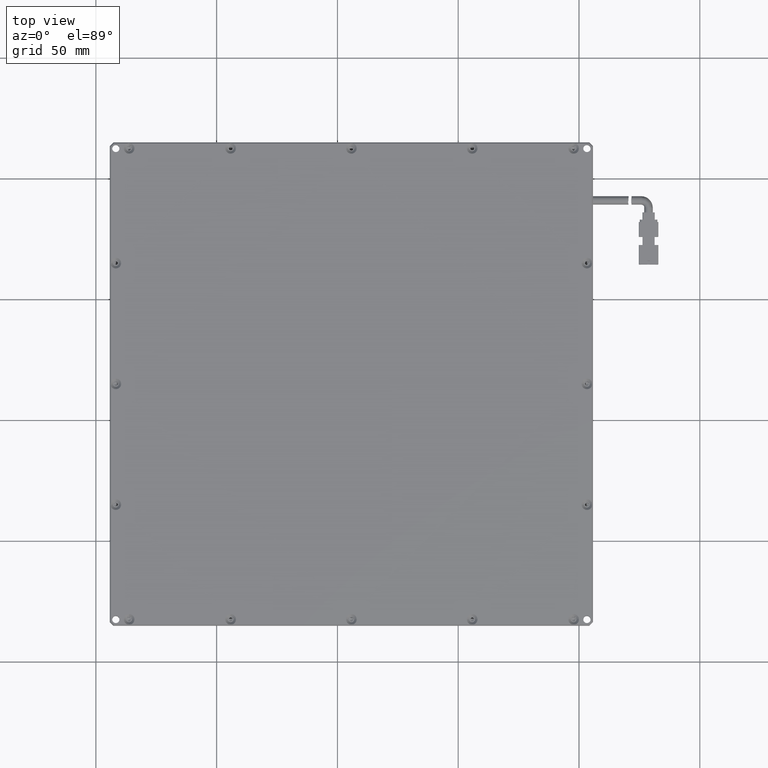
[diagram: clean part render]
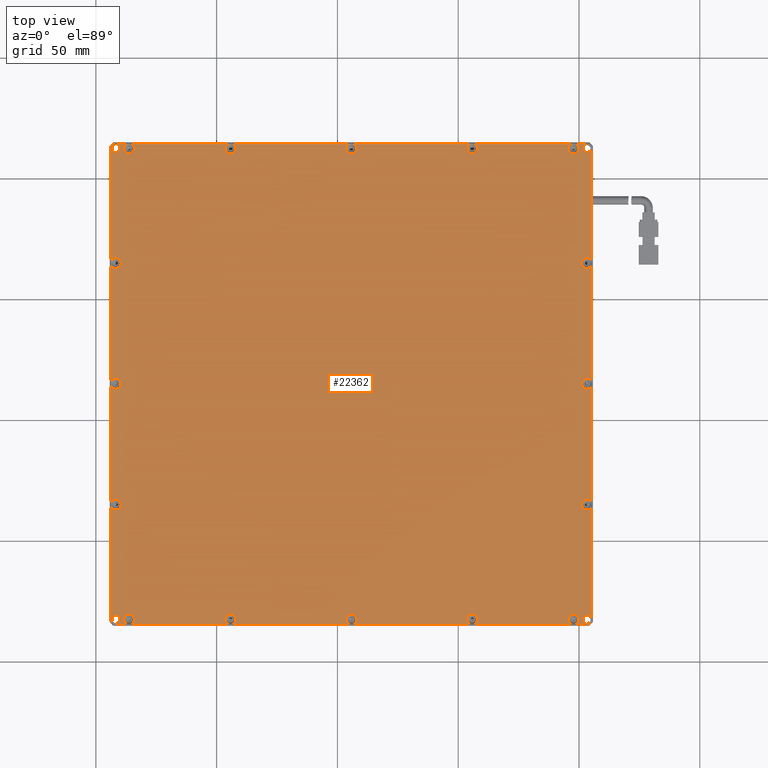
[diagram: same view with one face highlighted and labeled with its STEP entity id]
A machine part, top view. The second image highlights one B-rep face of the part: STEP entity #22362.
In plain terms, the highlighted planar face has unit normal (0, 0, -1).
Its self-contained STEP definition (entity closure, byte-faithful):
#9 = LINE ( 'NONE', #17418, #5781 ) ;
#215 = CARTESIAN_POINT ( 'NONE',  ( -143.7189553990610600, 114.9508215962441300, 5.999999999999998200 ) ) ;
#346 = CIRCLE ( 'NONE', #2779, 2.199999999982077600 ) ;
#432 = DIRECTION ( 'NONE',  ( 1.000000000000000000, -0.0000000000000000000, 0.0000000000000000000 ) ) ;
#549 = DIRECTION ( 'NONE',  ( 1.000000000000000000, 0.0000000000000000000, 0.0000000000000000000 ) ) ;
#575 = ORIENTED_EDGE ( 'NONE', *, *, #21312, .F. ) ;
#603 = DIRECTION ( 'NONE',  ( 1.000000000000000000, -6.308085367148496200E-015, 0.0000000000000000000 ) ) ;
#683 = VECTOR ( 'NONE', #26050, 1000.000000000000000 ) ;
#736 = CIRCLE ( 'NONE', #11920, 2.199999999970697400 ) ;
#926 = CARTESIAN_POINT ( 'NONE',  ( 5.781044600938978200, 112.4508215962441300, 5.999999999964528800 ) ) ;
#1014 = CIRCLE ( 'NONE', #4837, 2.199999999982077600 ) ;
#1059 = CIRCLE ( 'NONE', #4565, 2.199999999966617500 ) ;
#1131 = EDGE_LOOP ( 'NONE', ( #11905, #6549 ) ) ;
#1141 = CARTESIAN_POINT ( 'NONE',  ( 47.78104460093896200, 112.4508215962441300, 5.999999999964528800 ) ) ;
#1149 = AXIS2_PLACEMENT_3D ( 'NONE', #30091, #15254, #549 ) ;
#1161 = VERTEX_POINT ( 'NONE', #7705 ) ;
#1170 = CARTESIAN_POINT ( 'NONE',  ( 53.28104460093896200, 64.95082159624411100, 5.999999999964528800 ) ) ;
#1216 = AXIS2_PLACEMENT_3D ( 'NONE', #3272, #20419, #5711 ) ;
#1233 = VERTEX_POINT ( 'NONE', #25241 ) ;
#1296 = CARTESIAN_POINT ( 'NONE',  ( -143.7189553990219500, -35.96569354284905300, 6.000000000039106500 ) ) ;
#1353 = VERTEX_POINT ( 'NONE', #11029 ) ;
#1367 = CIRCLE ( 'NONE', #1216, 1.649999999999984800 ) ;
#1398 = CARTESIAN_POINT ( 'NONE',  ( -141.7189553990610300, 112.4508215962441300, 6.000000000000000000 ) ) ;
#1428 = CARTESIAN_POINT ( 'NONE',  ( -45.13547053803061700, -84.54917840375590300, 6.000000000039107400 ) ) ;
#1444 = VECTOR ( 'NONE', #27072, 1000.000000000000000 ) ;
#1498 = VERTEX_POINT ( 'NONE', #11196 ) ;
#1517 = CARTESIAN_POINT ( 'NONE',  ( -141.7189553990610300, 64.95082159624411100, 6.000000000078215700 ) ) ;
#1543 = CARTESIAN_POINT ( 'NONE',  ( 47.78104460093896200, -82.54917840375587400, 5.999999999964528800 ) ) ;
#1584 = FACE_OUTER_BOUND ( 'NONE', #27089, .T. ) ;
#1631 = DIRECTION ( 'NONE',  ( 0.0000000000000000000, -1.000000000000000000, 0.0000000000000000000 ) ) ;
#1633 = DIRECTION ( 'NONE',  ( -0.0000000000000000000, 0.0000000000000000000, -1.000000000000000000 ) ) ;
#1692 = CARTESIAN_POINT ( 'NONE',  ( -46.41895539904311400, -82.54917840375587400, 6.000000000078215700 ) ) ;
#1722 = ORIENTED_EDGE ( 'NONE', *, *, #9788, .F. ) ;
#1921 = CARTESIAN_POINT ( 'NONE',  ( -95.13547053801694600, -84.54917840375590300, 6.000000000010684800 ) ) ;
#2008 = DIRECTION ( 'NONE',  ( 0.0000000000000000000, -1.000000000000000000, 0.0000000000000000000 ) ) ;
#2048 = CIRCLE ( 'NONE', #11554, 2.199999999950241800 ) ;
#2172 = DIRECTION ( 'NONE',  ( -0.0000000000000000000, 0.0000000000000000000, -1.000000000000000000 ) ) ;
#2289 = CARTESIAN_POINT ( 'NONE',  ( -141.7189553990610300, 112.4508215962441300, 6.000000000000000000 ) ) ;
#2305 = EDGE_CURVE ( 'NONE', #27776, #6881, #16948, .T. ) ;
#2345 = ORIENTED_EDGE ( 'NONE', *, *, #5257, .F. ) ;
#2405 = CIRCLE ( 'NONE', #6444, 2.199999999993429400 ) ;
#2452 = CARTESIAN_POINT ( 'NONE',  ( -44.21895539906103800, -82.54917840375587400, 6.000000000078215700 ) ) ;
#2475 = AXIS2_PLACEMENT_3D ( 'NONE', #1543, #18724, #4047 ) ;
#2579 = EDGE_CURVE ( 'NONE', #4426, #17363, #31985, .T. ) ;
#2663 = EDGE_CURVE ( 'NONE', #6644, #12762, #346, .T. ) ;
#2714 = DIRECTION ( 'NONE',  ( 0.0000000000000000000, 1.000000000000000000, 0.0000000000000000000 ) ) ;
#2779 = AXIS2_PLACEMENT_3D ( 'NONE', #9190, #26431, #11627 ) ;
#2796 = VECTOR ( 'NONE', #20002, 1000.000000000000000 ) ;
#2887 = CIRCLE ( 'NONE', #19768, 2.199999999982077600 ) ;
#2937 = CARTESIAN_POINT ( 'NONE',  ( 47.78104460093896200, -82.54917840375587400, 5.999999999964528800 ) ) ;
#2944 = EDGE_CURVE ( 'NONE', #6192, #24902, #9785, .T. ) ;
#2967 = CARTESIAN_POINT ( 'NONE',  ( 47.78104460093896200, 112.4508215962441300, 5.999999999964528800 ) ) ;
#2968 = CARTESIAN_POINT ( 'NONE',  ( 48.69755973989006700, 114.4508215962441500, 5.999999999982263100 ) ) ;
#3008 = AXIS2_PLACEMENT_3D ( 'NONE', #2967, #20139, #5404 ) ;
#3043 = ORIENTED_EDGE ( 'NONE', *, *, #8517, .T. ) ;
#3097 = ORIENTED_EDGE ( 'NONE', *, *, #14059, .F. ) ;
#3103 = CIRCLE ( 'NONE', #3933, 2.199999999950241800 ) ;
#3107 = DIRECTION ( 'NONE',  ( 0.0000000000000000000, 0.0000000000000000000, 1.000000000000000000 ) ) ;
#3110 = VERTEX_POINT ( 'NONE', #23578 ) ;
#3123 = VERTEX_POINT ( 'NONE', #26405 ) ;
#3161 = CARTESIAN_POINT ( 'NONE',  ( 55.28104460093899800, 114.9508215962441300, 5.999999999999998200 ) ) ;
#3205 = LINE ( 'NONE', #12243, #28696 ) ;
#3272 = CARTESIAN_POINT ( 'NONE',  ( 53.28104460093896200, 112.4508215962441300, 6.000000000000000000 ) ) ;
#3334 = CARTESIAN_POINT ( 'NONE',  ( 47.78104460093896200, 112.4508215962441300, 5.999999999964528800 ) ) ;
#3415 = CARTESIAN_POINT ( 'NONE',  ( -140.0689553990610500, -82.54917840375587400, 6.000000000000000000 ) ) ;
#3416 = EDGE_CURVE ( 'NONE', #22461, #3690, #20862, .T. ) ;
#3417 = DIRECTION ( 'NONE',  ( 1.000000000000000000, 0.0000000000000000000, 0.0000000000000000000 ) ) ;
#3421 = CARTESIAN_POINT ( 'NONE',  ( 5.781044600938978200, -82.54917840375587400, 5.999999999964528800 ) ) ;
#3441 = CIRCLE ( 'NONE', #11227, 2.199999999982077600 ) ;
#3486 = DIRECTION ( 'NONE',  ( -1.000000000000000000, 0.0000000000000000000, -0.0000000000000000000 ) ) ;
#3516 = AXIS2_PLACEMENT_3D ( 'NONE', #31504, #16727, #2008 ) ;
#3573 = ORIENTED_EDGE ( 'NONE', *, *, #8028, .F. ) ;
#3589 = CARTESIAN_POINT ( 'NONE',  ( 3.581044600945548800, 112.4508215962441300, 5.999999999964528800 ) ) ;
#3594 = CARTESIAN_POINT ( 'NONE',  ( -141.7189553990610300, 17.15082159625804100, 6.000000000021372200 ) ) ;
#3620 = DIRECTION ( 'NONE',  ( 0.0000000000000000000, 4.928191693121445900E-017, 1.000000000000000000 ) ) ;
#3671 = DIRECTION ( 'NONE',  ( 1.000000000000000000, 0.0000000000000000000, 0.0000000000000000000 ) ) ;
#3690 = VERTEX_POINT ( 'NONE', #12838 ) ;
#3693 = DIRECTION ( 'NONE',  ( -0.0000000000000000000, -1.000000000000000000, -0.0000000000000000000 ) ) ;
#3694 = CARTESIAN_POINT ( 'NONE',  ( 55.28104460093899800, 114.9508215962441300, 5.999999999999998200 ) ) ;
#3701 = DIRECTION ( 'NONE',  ( 1.000000000000000000, 0.0000000000000000000, 0.0000000000000000000 ) ) ;
#3836 = CARTESIAN_POINT ( 'NONE',  ( -143.7189553990591300, 14.03430645723639700, 6.000000000012623700 ) ) ;
#3843 = CARTESIAN_POINT ( 'NONE',  ( -136.2189553990610300, -80.34917840375834400, 6.000000000021372200 ) ) ;
#3899 = DIRECTION ( 'NONE',  ( 1.000000000000000000, 0.0000000000000000000, 0.0000000000000000000 ) ) ;
#3918 = VERTEX_POINT ( 'NONE', #4664 ) ;
#3933 = AXIS2_PLACEMENT_3D ( 'NONE', #1170, #18356, #3701 ) ;
#3970 = DIRECTION ( 'NONE',  ( 0.0000000000000000000, 0.0000000000000000000, -1.000000000000000000 ) ) ;
#4006 = EDGE_CURVE ( 'NONE', #3123, #14960, #9, .T. ) ;
#4007 = EDGE_CURVE ( 'NONE', #26918, #4374, #18864, .T. ) ;
#4016 = ORIENTED_EDGE ( 'NONE', *, *, #16414, .T. ) ;
#4025 = DIRECTION ( 'NONE',  ( 1.000000000000000000, 0.0000000000000000000, 0.0000000000000000000 ) ) ;
#4047 = DIRECTION ( 'NONE',  ( 1.000000000000000000, 0.0000000000000000000, 0.0000000000000000000 ) ) ;
#4050 = CIRCLE ( 'NONE', #13877, 2.199999999966617500 ) ;
#4070 = EDGE_CURVE ( 'NONE', #13964, #3918, #11540, .T. ) ;
#4110 = ORIENTED_EDGE ( 'NONE', *, *, #23192, .F. ) ;
#4114 = DIRECTION ( 'NONE',  ( -0.0000000000000000000, -4.928191693181569400E-017, -1.000000000000000000 ) ) ;
#4175 = ORIENTED_EDGE ( 'NONE', *, *, #6345, .F. ) ;
#4244 = AXIS2_PLACEMENT_3D ( 'NONE', #20089, #5346, #22605 ) ;
#4277 = ORIENTED_EDGE ( 'NONE', *, *, #7609, .T. ) ;
#4374 = VERTEX_POINT ( 'NONE', #17175 ) ;
#4426 = VERTEX_POINT ( 'NONE', #20285 ) ;
#4466 = CARTESIAN_POINT ( 'NONE',  ( 53.28104460093896200, -35.04917840375588900, 5.999999999964528800 ) ) ;
#4524 = ORIENTED_EDGE ( 'NONE', *, *, #10948, .T. ) ;
#4554 = CIRCLE ( 'NONE', #23921, 2.199999999966617500 ) ;
#4565 = AXIS2_PLACEMENT_3D ( 'NONE', #1141, #18325, #3671 ) ;
#4575 = EDGE_CURVE ( 'NONE', #15608, #29988, #7992, .T. ) ;
#4582 = EDGE_CURVE ( 'NONE', #23902, #29952, #14534, .T. ) ;
#4664 = CARTESIAN_POINT ( 'NONE',  ( 46.86452946198793500, 114.4508215962441500, 5.999999999982263100 ) ) ;
#4756 = DIRECTION ( 'NONE',  ( 1.000000000000000000, 0.0000000000000000000, 0.0000000000000000000 ) ) ;
#4762 = AXIS2_PLACEMENT_3D ( 'NONE', #28230, #13400, #30688 ) ;
#4837 = AXIS2_PLACEMENT_3D ( 'NONE', #8632, #25862, #11086 ) ;
#4877 = DIRECTION ( 'NONE',  ( 1.000000000000000000, 0.0000000000000000000, 0.0000000000000000000 ) ) ;
#4930 = EDGE_CURVE ( 'NONE', #9686, #9213, #12200, .T. ) ;
#4967 = CARTESIAN_POINT ( 'NONE',  ( 3.581044600945548800, -82.54917840375587400, 5.999999999964528800 ) ) ;
#5038 = EDGE_CURVE ( 'NONE', #12762, #8714, #5164, .T. ) ;
#5073 = VECTOR ( 'NONE', #30533, 1000.000000000000000 ) ;
#5103 = ORIENTED_EDGE ( 'NONE', *, *, #4930, .F. ) ;
#5164 = CIRCLE ( 'NONE', #8565, 2.199999999982077600 ) ;
#5185 = CARTESIAN_POINT ( 'NONE',  ( -94.21895539906103100, 112.4508215962441300, 6.000000000021372200 ) ) ;
#5233 = CARTESIAN_POINT ( 'NONE',  ( -141.7189553990610300, 14.95082159624412700, 6.000000000021372200 ) ) ;
#5257 = EDGE_CURVE ( 'NONE', #6881, #23902, #14738, .T. ) ;
#5264 = DIRECTION ( 'NONE',  ( 0.0000000000000000000, 0.0000000000000000000, -1.000000000000000000 ) ) ;
#5307 = LINE ( 'NONE', #10950, #24937 ) ;
#5346 = DIRECTION ( 'NONE',  ( 0.0000000000000000000, -0.0000000000000000000, 1.000000000000000000 ) ) ;
#5361 = DIRECTION ( 'NONE',  ( 1.000000000000000000, 0.0000000000000000000, 0.0000000000000000000 ) ) ;
#5369 = CARTESIAN_POINT ( 'NONE',  ( -144.2189553990610300, 114.4508215962441500, 5.999999999999998200 ) ) ;
#5404 = DIRECTION ( 'NONE',  ( 1.000000000000000000, 0.0000000000000000000, 0.0000000000000000000 ) ) ;
#5448 = VERTEX_POINT ( 'NONE', #10666 ) ;
#5490 = CARTESIAN_POINT ( 'NONE',  ( 53.28104460093896200, 14.95082159624412700, 5.999999999964528800 ) ) ;
#5645 = VERTEX_POINT ( 'NONE', #22317 ) ;
#5657 = VECTOR ( 'NONE', #28575, 1000.000000000000000 ) ;
#5711 = DIRECTION ( 'NONE',  ( 1.000000000000000000, 0.0000000000000000000, 0.0000000000000000000 ) ) ;
#5770 = DIRECTION ( 'NONE',  ( 1.000000000000000000, 0.0000000000000000000, 0.0000000000000000000 ) ) ;
#5781 = VECTOR ( 'NONE', #27359, 1000.000000000000000 ) ;
#5804 = CIRCLE ( 'NONE', #24880, 2.199999999966617500 ) ;
#5868 = DIRECTION ( 'NONE',  ( 1.000000000000000000, 0.0000000000000000000, 0.0000000000000000000 ) ) ;
#5927 = CARTESIAN_POINT ( 'NONE',  ( -42.01895539907896200, -82.54917840375587400, 6.000000000078215700 ) ) ;
#5955 = CARTESIAN_POINT ( 'NONE',  ( -135.3024402600728700, -84.54917840375590300, 6.000000000010685700 ) ) ;
#6105 = VECTOR ( 'NONE', #29863, 1000.000000000000000 ) ;
#6134 = LINE ( 'NONE', #13313, #24959 ) ;
#6142 = ORIENTED_EDGE ( 'NONE', *, *, #28583, .T. ) ;
#6152 = CARTESIAN_POINT ( 'NONE',  ( 55.28104460093899800, 113.2437148150575300, 5.999999999999998200 ) ) ;
#6192 = VERTEX_POINT ( 'NONE', #6815 ) ;
#6290 = CARTESIAN_POINT ( 'NONE',  ( -46.41895539904311400, 112.4508215962441300, 6.000000000078215700 ) ) ;
#6345 = EDGE_CURVE ( 'NONE', #31512, #24586, #12828, .T. ) ;
#6385 = CARTESIAN_POINT ( 'NONE',  ( -93.30244026010508700, -84.54917840375590300, 6.000000000010684800 ) ) ;
#6444 = AXIS2_PLACEMENT_3D ( 'NONE', #16345, #1633, #18806 ) ;
#6541 = VERTEX_POINT ( 'NONE', #12224 ) ;
#6549 = ORIENTED_EDGE ( 'NONE', *, *, #4575, .T. ) ;
#6573 = ORIENTED_EDGE ( 'NONE', *, *, #19165, .F. ) ;
#6644 = VERTEX_POINT ( 'NONE', #27307 ) ;
#6655 = AXIS2_PLACEMENT_3D ( 'NONE', #12248, #29552, #14737 ) ;
#6707 = EDGE_CURVE ( 'NONE', #9213, #19733, #3205, .T. ) ;
#6722 = CARTESIAN_POINT ( 'NONE',  ( -94.21895539906103100, -82.54917840375587400, 6.000000000021372200 ) ) ;
#6770 = DIRECTION ( 'NONE',  ( -1.000000000000000000, 0.0000000000000000000, -0.0000000000000000000 ) ) ;
#6792 = ORIENTED_EDGE ( 'NONE', *, *, #21724, .F. ) ;
#6815 = CARTESIAN_POINT ( 'NONE',  ( -139.5189553990471200, -35.04917840375588900, 6.000000000078215700 ) ) ;
#6817 = VECTOR ( 'NONE', #16076, 1000.000000000000000 ) ;
#6852 = ORIENTED_EDGE ( 'NONE', *, *, #3416, .F. ) ;
#6853 = CARTESIAN_POINT ( 'NONE',  ( -142.5118486178745300, 114.4508215962441500, 5.999999999999998200 ) ) ;
#6874 = DIRECTION ( 'NONE',  ( 1.000000000000000000, -0.0000000000000000000, 0.0000000000000000000 ) ) ;
#6876 = CARTESIAN_POINT ( 'NONE',  ( -44.21895539906103800, -82.54917840375587400, 6.000000000078215700 ) ) ;
#6881 = VERTEX_POINT ( 'NONE', #22815 ) ;
#6944 = DIRECTION ( 'NONE',  ( 1.000000000000000000, 3.154042683665530700E-015, 0.0000000000000000000 ) ) ;
#6949 = EDGE_CURVE ( 'NONE', #21274, #10910, #22811, .T. ) ;
#7208 = AXIS2_PLACEMENT_3D ( 'NONE', #23350, #8601, #25828 ) ;
#7229 = EDGE_CURVE ( 'NONE', #25090, #22693, #21999, .T. ) ;
#7236 = CARTESIAN_POINT ( 'NONE',  ( -143.7189553990484400, 15.86733673527518500, 6.000000000012625500 ) ) ;
#7324 = EDGE_CURVE ( 'NONE', #29988, #15608, #17331, .T. ) ;
#7334 = CARTESIAN_POINT ( 'NONE',  ( -136.2189553990610300, 112.4508215962441300, 6.000000000021372200 ) ) ;
#7351 = FACE_BOUND ( 'NONE', #29744, .T. ) ;
#7383 = ORIENTED_EDGE ( 'NONE', *, *, #11726, .F. ) ;
#7418 = ORIENTED_EDGE ( 'NONE', *, *, #29681, .T. ) ;
#7441 = DIRECTION ( 'NONE',  ( -0.0000000000000000000, 0.0000000000000000000, -1.000000000000000000 ) ) ;
#7458 = EDGE_CURVE ( 'NONE', #9776, #24902, #30102, .T. ) ;
#7492 = AXIS2_PLACEMENT_3D ( 'NONE', #25603, #10846, #28115 ) ;
#7587 = ORIENTED_EDGE ( 'NONE', *, *, #26110, .T. ) ;
#7609 = EDGE_CURVE ( 'NONE', #22693, #9283, #736, .T. ) ;
#7643 = DIRECTION ( 'NONE',  ( 0.0000000000000000000, -1.000000000000000000, 0.0000000000000000000 ) ) ;
#7705 = CARTESIAN_POINT ( 'NONE',  ( 55.28104460093899800, -35.96569354268730500, 5.999999999982263100 ) ) ;
#7706 = DIRECTION ( 'NONE',  ( 0.0000000000000000000, -1.000000000000000000, 0.0000000000000000000 ) ) ;
#7772 = VECTOR ( 'NONE', #15081, 1000.000000000000000 ) ;
#7910 = EDGE_CURVE ( 'NONE', #11046, #11838, #4554, .T. ) ;
#7911 = CIRCLE ( 'NONE', #19845, 2.199999999993429400 ) ;
#7914 = CARTESIAN_POINT ( 'NONE',  ( 47.78104460093896200, -82.54917840375587400, 5.999999999964528800 ) ) ;
#7948 = DIRECTION ( 'NONE',  ( 1.000000000000000000, 0.0000000000000000000, 0.0000000000000000000 ) ) ;
#7992 = CIRCLE ( 'NONE', #18646, 1.649999999999984800 ) ;
#8028 = EDGE_CURVE ( 'NONE', #3918, #27301, #1059, .T. ) ;
#8050 = AXIS2_PLACEMENT_3D ( 'NONE', #1517, #18703, #4025 ) ;
#8056 = ORIENTED_EDGE ( 'NONE', *, *, #16906, .F. ) ;
#8260 = ORIENTED_EDGE ( 'NONE', *, *, #15667, .F. ) ;
#8298 = CARTESIAN_POINT ( 'NONE',  ( -143.7189553990610600, -83.34207162256933500, 5.999999999999998200 ) ) ;
#8399 = CIRCLE ( 'NONE', #30233, 2.200000000007085200 ) ;
#8516 = ORIENTED_EDGE ( 'NONE', *, *, #15926, .T. ) ;
#8517 = EDGE_CURVE ( 'NONE', #13804, #15909, #14869, .T. ) ;
#8540 = CARTESIAN_POINT ( 'NONE',  ( -144.2189553990610300, 114.9508215962441300, 5.999999999999998200 ) ) ;
#8565 = AXIS2_PLACEMENT_3D ( 'NONE', #2452, #19612, #4877 ) ;
#8569 = CIRCLE ( 'NONE', #4762, 2.199999999997537300 ) ;
#8601 = DIRECTION ( 'NONE',  ( 0.0000000000000000000, 0.0000000000000000000, -1.000000000000000000 ) ) ;
#8624 = ORIENTED_EDGE ( 'NONE', *, *, #2663, .F. ) ;
#8632 = CARTESIAN_POINT ( 'NONE',  ( -44.21895539906103800, 112.4508215962441300, 6.000000000078215700 ) ) ;
#8700 = DIRECTION ( 'NONE',  ( -0.0000000000000000000, 0.0000000000000000000, -1.000000000000000000 ) ) ;
#8714 = VERTEX_POINT ( 'NONE', #1692 ) ;
#8821 = VERTEX_POINT ( 'NONE', #14340 ) ;
#8999 = CARTESIAN_POINT ( 'NONE',  ( 55.28104460093899800, -83.34207162256933500, 5.999999999999998200 ) ) ;
#9083 = EDGE_CURVE ( 'NONE', #11291, #6541, #10234, .T. ) ;
#9100 = EDGE_CURVE ( 'NONE', #1353, #26145, #1367, .T. ) ;
#9149 = EDGE_CURVE ( 'NONE', #21274, #6644, #29518, .T. ) ;
#9179 = DIRECTION ( 'NONE',  ( 0.0000000000000000000, -1.000000000000000000, 0.0000000000000000000 ) ) ;
#9190 = CARTESIAN_POINT ( 'NONE',  ( -44.21895539906103800, -82.54917840375587400, 6.000000000078215700 ) ) ;
#9213 = VERTEX_POINT ( 'NONE', #28271 ) ;
#9245 = CARTESIAN_POINT ( 'NONE',  ( 51.08104460098872600, -35.04917840375588900, 5.999999999964528800 ) ) ;
#9283 = VERTEX_POINT ( 'NONE', #6385 ) ;
#9365 = DIRECTION ( 'NONE',  ( 1.000000000000000000, 0.0000000000000000000, 0.0000000000000000000 ) ) ;
#9369 = CIRCLE ( 'NONE', #6655, 1.649999999999984800 ) ;
#9399 = CARTESIAN_POINT ( 'NONE',  ( -143.7189553990610600, -34.13266326474807500, 6.000000000039106500 ) ) ;
#9400 = DIRECTION ( 'NONE',  ( 0.0000000000000000000, -0.0000000000000000000, 1.000000000000000000 ) ) ;
#9552 = ORIENTED_EDGE ( 'NONE', *, *, #31591, .T. ) ;
#9601 = EDGE_CURVE ( 'NONE', #11838, #31237, #26693, .T. ) ;
#9686 = VERTEX_POINT ( 'NONE', #2968 ) ;
#9714 = VERTEX_POINT ( 'NONE', #17644 ) ;
#9776 = VERTEX_POINT ( 'NONE', #8298 ) ;
#9785 = CIRCLE ( 'NONE', #21926, 2.200000000013913000 ) ;
#9788 = EDGE_CURVE ( 'NONE', #30914, #3110, #27053, .T. ) ;
#9834 = DIRECTION ( 'NONE',  ( 0.0000000000000000000, -1.000000000000000000, 0.0000000000000000000 ) ) ;
#10100 = VECTOR ( 'NONE', #20824, 1000.000000000000000 ) ;
#10180 = CARTESIAN_POINT ( 'NONE',  ( -94.21895539906103100, 112.4508215962441300, 6.000000000021372200 ) ) ;
#10218 = LINE ( 'NONE', #3161, #23300 ) ;
#10234 = LINE ( 'NONE', #27704, #23317 ) ;
#10264 = CARTESIAN_POINT ( 'NONE',  ( 55.28104460093899800, -83.34207162256933500, 5.999999999999998200 ) ) ;
#10398 = DIRECTION ( 'NONE',  ( 1.000000000000000000, 0.0000000000000000000, 0.0000000000000000000 ) ) ;
#10400 = VECTOR ( 'NONE', #2714, 1000.000000000000000 ) ;
#10448 = VERTEX_POINT ( 'NONE', #14491 ) ;
#10533 = EDGE_CURVE ( 'NONE', #19923, #24387, #12616, .T. ) ;
#10549 = CARTESIAN_POINT ( 'NONE',  ( 55.28104460093899800, 15.86733673524372400, 5.999999999982263100 ) ) ;
#10551 = EDGE_CURVE ( 'NONE', #5448, #31512, #19178, .T. ) ;
#10560 = VERTEX_POINT ( 'NONE', #25013 ) ;
#10666 = CARTESIAN_POINT ( 'NONE',  ( -141.7189553990610300, 12.75082159623021400, 6.000000000021372200 ) ) ;
#10784 = VECTOR ( 'NONE', #432, 1000.000000000000000 ) ;
#10841 = DIRECTION ( 'NONE',  ( -0.0000000000000000000, 0.0000000000000000000, -1.000000000000000000 ) ) ;
#10846 = DIRECTION ( 'NONE',  ( 0.0000000000000000000, 4.928191693121445900E-017, 1.000000000000000000 ) ) ;
#10909 = ORIENTED_EDGE ( 'NONE', *, *, #2944, .T. ) ;
#10910 = VERTEX_POINT ( 'NONE', #4967 ) ;
#10948 = EDGE_CURVE ( 'NONE', #29195, #3690, #19127, .T. ) ;
#10950 = CARTESIAN_POINT ( 'NONE',  ( -144.2189553990610300, -84.54917840375590300, 5.999999999999998200 ) ) ;
#10969 = DIRECTION ( 'NONE',  ( 0.0000000000000000000, 1.000000000000000000, 0.0000000000000000000 ) ) ;
#11004 = DIRECTION ( 'NONE',  ( -1.000000000000000000, 0.0000000000000000000, -0.0000000000000000000 ) ) ;
#11029 = CARTESIAN_POINT ( 'NONE',  ( 54.93104460093894700, 112.4508215962441300, 6.000000000000000000 ) ) ;
#11046 = VERTEX_POINT ( 'NONE', #20305 ) ;
#11086 = DIRECTION ( 'NONE',  ( 1.000000000000000000, 0.0000000000000000000, 0.0000000000000000000 ) ) ;
#11167 = VECTOR ( 'NONE', #16059, 1000.000000000000000 ) ;
#11196 = CARTESIAN_POINT ( 'NONE',  ( 55.28104460095673300, 65.86733673513683100, 5.999999999982263100 ) ) ;
#11218 = CARTESIAN_POINT ( 'NONE',  ( -135.3024402600728700, 114.4508215962441500, 6.000000000010684800 ) ) ;
#11227 = AXIS2_PLACEMENT_3D ( 'NONE', #6876, #24073, #9365 ) ;
#11291 = VERTEX_POINT ( 'NONE', #18712 ) ;
#11373 = EDGE_CURVE ( 'NONE', #13964, #13804, #16756, .T. ) ;
#11540 = LINE ( 'NONE', #5369, #10784 ) ;
#11554 = AXIS2_PLACEMENT_3D ( 'NONE', #22185, #7441, #24623 ) ;
#11560 = ORIENTED_EDGE ( 'NONE', *, *, #6707, .F. ) ;
#11627 = DIRECTION ( 'NONE',  ( 1.000000000000000000, 0.0000000000000000000, 0.0000000000000000000 ) ) ;
#11726 = EDGE_CURVE ( 'NONE', #27301, #8821, #4050, .T. ) ;
#11838 = VERTEX_POINT ( 'NONE', #26031 ) ;
#11854 = CIRCLE ( 'NONE', #7492, 2.199999999997537300 ) ;
#11870 = AXIS2_PLACEMENT_3D ( 'NONE', #10180, #27381, #12601 ) ;
#11905 = ORIENTED_EDGE ( 'NONE', *, *, #7324, .T. ) ;
#11920 = AXIS2_PLACEMENT_3D ( 'NONE', #18808, #4114, #21311 ) ;
#11945 = ORIENTED_EDGE ( 'NONE', *, *, #31387, .F. ) ;
#11949 = CIRCLE ( 'NONE', #1149, 2.200000000013913000 ) ;
#12090 = ORIENTED_EDGE ( 'NONE', *, *, #19589, .F. ) ;
#12123 = AXIS2_PLACEMENT_3D ( 'NONE', #6722, #23896, #9179 ) ;
#12126 = AXIS2_PLACEMENT_3D ( 'NONE', #18278, #3620, #20735 ) ;
#12200 = LINE ( 'NONE', #18694, #5657 ) ;
#12224 = CARTESIAN_POINT ( 'NONE',  ( 48.69755973989006700, -84.54917840375590300, 5.999999999982264000 ) ) ;
#12243 = CARTESIAN_POINT ( 'NONE',  ( 54.07393781975239500, 114.4508215962441500, 5.999999999999998200 ) ) ;
#12248 = CARTESIAN_POINT ( 'NONE',  ( 53.28104460093896200, 112.4508215962441300, 6.000000000000000000 ) ) ;
#12264 = CARTESIAN_POINT ( 'NONE',  ( -143.7189553990610600, 65.86733673525192500, 6.000000000039106500 ) ) ;
#12352 = DIRECTION ( 'NONE',  ( 0.7071067811865474600, -0.7071067811865474600, 0.0000000000000000000 ) ) ;
#12406 = ORIENTED_EDGE ( 'NONE', *, *, #7458, .F. ) ;
#12444 = VERTEX_POINT ( 'NONE', #29181 ) ;
#12513 = CIRCLE ( 'NONE', #19073, 2.199999999997537300 ) ;
#12529 = DIRECTION ( 'NONE',  ( -0.0000000000000000000, 0.0000000000000000000, -1.000000000000000000 ) ) ;
#12546 = ORIENTED_EDGE ( 'NONE', *, *, #4582, .F. ) ;
#12601 = DIRECTION ( 'NONE',  ( 0.0000000000000000000, -1.000000000000000000, 0.0000000000000000000 ) ) ;
#12616 = LINE ( 'NONE', #22379, #6105 ) ;
#12730 = VERTEX_POINT ( 'NONE', #10549 ) ;
#12762 = VERTEX_POINT ( 'NONE', #5927 ) ;
#12771 = VERTEX_POINT ( 'NONE', #15799 ) ;
#12790 = CARTESIAN_POINT ( 'NONE',  ( -141.7189553990610300, -35.04917840375588900, 6.000000000078215700 ) ) ;
#12828 = CIRCLE ( 'NONE', #31757, 2.200000000013913000 ) ;
#12838 = CARTESIAN_POINT ( 'NONE',  ( -95.13547053801696100, 114.4508215962441500, 6.000000000010684800 ) ) ;
#12905 = DIRECTION ( 'NONE',  ( -1.000000000000000000, 0.0000000000000000000, -0.0000000000000000000 ) ) ;
#13259 = CARTESIAN_POINT ( 'NONE',  ( -137.1354705380491900, 114.4508215962441500, 6.000000000010684800 ) ) ;
#13313 = CARTESIAN_POINT ( 'NONE',  ( 55.28104460093899800, 114.9508215962441300, 5.999999999999998200 ) ) ;
#13318 = LINE ( 'NONE', #28421, #6817 ) ;
#13365 = CARTESIAN_POINT ( 'NONE',  ( -93.30244026010507200, 114.4508215962441500, 6.000000000010684800 ) ) ;
#13400 = DIRECTION ( 'NONE',  ( 0.0000000000000000000, 4.928191693121445900E-017, 1.000000000000000000 ) ) ;
#13402 = EDGE_CURVE ( 'NONE', #15008, #11291, #29040, .T. ) ;
#13577 = EDGE_CURVE ( 'NONE', #24586, #5645, #29002, .T. ) ;
#13646 = ORIENTED_EDGE ( 'NONE', *, *, #31619, .T. ) ;
#13678 = CARTESIAN_POINT ( 'NONE',  ( -141.7189553990610300, -82.54917840375587400, 6.000000000000000000 ) ) ;
#13804 = VERTEX_POINT ( 'NONE', #22081 ) ;
#13857 = FACE_BOUND ( 'NONE', #20453, .T. ) ;
#13877 = AXIS2_PLACEMENT_3D ( 'NONE', #3334, #20490, #5770 ) ;
#13887 = EDGE_CURVE ( 'NONE', #24377, #10560, #24250, .T. ) ;
#13964 = VERTEX_POINT ( 'NONE', #23011 ) ;
#14059 = EDGE_CURVE ( 'NONE', #15018, #12730, #6134, .T. ) ;
#14250 = ORIENTED_EDGE ( 'NONE', *, *, #2305, .F. ) ;
#14253 = VERTEX_POINT ( 'NONE', #9245 ) ;
#14260 = EDGE_CURVE ( 'NONE', #8714, #19783, #3441, .T. ) ;
#14324 = ORIENTED_EDGE ( 'NONE', *, *, #16775, .F. ) ;
#14340 = CARTESIAN_POINT ( 'NONE',  ( 49.98104460090557700, 112.4508215962441300, 5.999999999964528800 ) ) ;
#14450 = EDGE_CURVE ( 'NONE', #1233, #1498, #23021, .T. ) ;
#14491 = CARTESIAN_POINT ( 'NONE',  ( -136.2189553990610300, 110.2508215962466000, 6.000000000021372200 ) ) ;
#14508 = ORIENTED_EDGE ( 'NONE', *, *, #13402, .F. ) ;
#14534 = LINE ( 'NONE', #30918, #683 ) ;
#14737 = DIRECTION ( 'NONE',  ( 1.000000000000000000, 0.0000000000000000000, 0.0000000000000000000 ) ) ;
#14738 = LINE ( 'NONE', #30405, #27881 ) ;
#14787 = LINE ( 'NONE', #23954, #21357 ) ;
#14869 = CIRCLE ( 'NONE', #26804, 2.199999999993429400 ) ;
#14960 = VERTEX_POINT ( 'NONE', #28320 ) ;
#15008 = VERTEX_POINT ( 'NONE', #8999 ) ;
#15018 = VERTEX_POINT ( 'NONE', #30883 ) ;
#15081 = DIRECTION ( 'NONE',  ( -1.000000000000000000, 0.0000000000000000000, -0.0000000000000000000 ) ) ;
#15248 = DIRECTION ( 'NONE',  ( 1.000000000000000000, 0.0000000000000000000, 0.0000000000000000000 ) ) ;
#15251 = EDGE_CURVE ( 'NONE', #30914, #29195, #25939, .T. ) ;
#15254 = DIRECTION ( 'NONE',  ( -0.0000000000000000000, 0.0000000000000000000, -1.000000000000000000 ) ) ;
#15303 = DIRECTION ( 'NONE',  ( -0.0000000000000000000, 0.0000000000000000000, -1.000000000000000000 ) ) ;
#15323 = CARTESIAN_POINT ( 'NONE',  ( 7.981044600932407600, -82.54917840375587400, 5.999999999964528800 ) ) ;
#15475 = EDGE_CURVE ( 'NONE', #12444, #11046, #20433, .T. ) ;
#15492 = LINE ( 'NONE', #3694, #10100 ) ;
#15603 = CARTESIAN_POINT ( 'NONE',  ( -94.21895539906103100, -80.34917840378517400, 6.000000000021372200 ) ) ;
#15607 = DIRECTION ( 'NONE',  ( 0.7071067811865555700, 0.7071067811865393600, 0.0000000000000000000 ) ) ;
#15608 = VERTEX_POINT ( 'NONE', #17306 ) ;
#15667 = EDGE_CURVE ( 'NONE', #6541, #12444, #5804, .T. ) ;
#15799 = CARTESIAN_POINT ( 'NONE',  ( -43.30244026009140200, 114.4508215962441500, 6.000000000039106500 ) ) ;
#15810 = VECTOR ( 'NONE', #10969, 1000.000000000000000 ) ;
#15909 = VERTEX_POINT ( 'NONE', #3589 ) ;
#15921 = EDGE_CURVE ( 'NONE', #15018, #1233, #3103, .T. ) ;
#15926 = EDGE_CURVE ( 'NONE', #17363, #4426, #21174, .T. ) ;
#15977 = CIRCLE ( 'NONE', #12126, 2.199999999997537300 ) ;
#16059 = DIRECTION ( 'NONE',  ( 0.0000000000000000000, 1.000000000000000000, 0.0000000000000000000 ) ) ;
#16076 = DIRECTION ( 'NONE',  ( 1.000000000000000000, -0.0000000000000000000, 0.0000000000000000000 ) ) ;
#16168 = DIRECTION ( 'NONE',  ( 1.000000000000000000, 0.0000000000000000000, 0.0000000000000000000 ) ) ;
#16341 = DIRECTION ( 'NONE',  ( 0.0000000000000000000, 4.928191693084763900E-017, 1.000000000000000000 ) ) ;
#16345 = CARTESIAN_POINT ( 'NONE',  ( 5.781044600938978200, -82.54917840375587400, 5.999999999964528800 ) ) ;
#16414 = EDGE_CURVE ( 'NONE', #19923, #6192, #21116, .T. ) ;
#16571 = CARTESIAN_POINT ( 'NONE',  ( 4.864529461955758200, -84.54917840375590300, 5.999999999982263100 ) ) ;
#16584 = ORIENTED_EDGE ( 'NONE', *, *, #28589, .T. ) ;
#16586 = ORIENTED_EDGE ( 'NONE', *, *, #4007, .T. ) ;
#16727 = DIRECTION ( 'NONE',  ( 0.0000000000000000000, 4.928191693084763900E-017, 1.000000000000000000 ) ) ;
#16756 = CIRCLE ( 'NONE', #18378, 2.199999999993429400 ) ;
#16775 = EDGE_CURVE ( 'NONE', #24387, #5448, #27246, .T. ) ;
#16877 = CARTESIAN_POINT ( 'NONE',  ( 5.781044600938978200, 112.4508215962441300, 5.999999999964528800 ) ) ;
#16906 = EDGE_CURVE ( 'NONE', #25090, #28247, #27641, .T. ) ;
#16948 = LINE ( 'NONE', #30853, #11167 ) ;
#17175 = CARTESIAN_POINT ( 'NONE',  ( 54.93104460093894700, -82.54917840375587400, 6.000000000000000000 ) ) ;
#17306 = CARTESIAN_POINT ( 'NONE',  ( -143.3689553990610400, 112.4508215962441300, 6.000000000000000000 ) ) ;
#17331 = CIRCLE ( 'NONE', #25328, 1.649999999999984800 ) ;
#17363 = VERTEX_POINT ( 'NONE', #3415 ) ;
#17403 = VERTEX_POINT ( 'NONE', #28072 ) ;
#17407 = ORIENTED_EDGE ( 'NONE', *, *, #15475, .F. ) ;
#17418 = CARTESIAN_POINT ( 'NONE',  ( 55.28104460093899800, 114.9508215962441300, 5.999999999999998200 ) ) ;
#17644 = CARTESIAN_POINT ( 'NONE',  ( 51.08104460093188200, 14.95082159624412700, 5.999999999964528800 ) ) ;
#17654 = AXIS2_PLACEMENT_3D ( 'NONE', #13678, #30978, #16168 ) ;
#17713 = AXIS2_PLACEMENT_3D ( 'NONE', #8540, #25773, #11004 ) ;
#17813 = CARTESIAN_POINT ( 'NONE',  ( 53.28104460093896200, 14.95082159624412700, 5.999999999964528800 ) ) ;
#18088 = DIRECTION ( 'NONE',  ( -0.0000000000000000000, 0.0000000000000000000, -1.000000000000000000 ) ) ;
#18278 = CARTESIAN_POINT ( 'NONE',  ( -136.2189553990610300, 112.4508215962441300, 6.000000000021372200 ) ) ;
#18314 = ORIENTED_EDGE ( 'NONE', *, *, #15251, .T. ) ;
#18325 = DIRECTION ( 'NONE',  ( 0.0000000000000000000, -0.0000000000000000000, 1.000000000000000000 ) ) ;
#18356 = DIRECTION ( 'NONE',  ( -0.0000000000000000000, 0.0000000000000000000, -1.000000000000000000 ) ) ;
#18378 = AXIS2_PLACEMENT_3D ( 'NONE', #16877, #2172, #19353 ) ;
#18459 = EDGE_CURVE ( 'NONE', #12730, #9714, #8399, .T. ) ;
#18584 = DIRECTION ( 'NONE',  ( 0.0000000000000000000, 0.0000000000000000000, -1.000000000000000000 ) ) ;
#18646 = AXIS2_PLACEMENT_3D ( 'NONE', #1398, #18584, #3899 ) ;
#18650 = CARTESIAN_POINT ( 'NONE',  ( 53.28104460093896200, -82.54917840375587400, 6.000000000000000000 ) ) ;
#18694 = CARTESIAN_POINT ( 'NONE',  ( -144.2189553990610300, 114.4508215962441500, 5.999999999999998200 ) ) ;
#18703 = DIRECTION ( 'NONE',  ( -0.0000000000000000000, 0.0000000000000000000, -1.000000000000000000 ) ) ;
#18712 = CARTESIAN_POINT ( 'NONE',  ( 54.07393781975245200, -84.54917840375590300, 5.999999999999993800 ) ) ;
#18724 = DIRECTION ( 'NONE',  ( 0.0000000000000000000, -0.0000000000000000000, 1.000000000000000000 ) ) ;
#18806 = DIRECTION ( 'NONE',  ( 1.000000000000000000, 0.0000000000000000000, 0.0000000000000000000 ) ) ;
#18808 = CARTESIAN_POINT ( 'NONE',  ( -94.21895539906103100, -82.54917840375587400, 6.000000000021372200 ) ) ;
#18862 = AXIS2_PLACEMENT_3D ( 'NONE', #27290, #12529, #29835 ) ;
#18864 = CIRCLE ( 'NONE', #25255, 1.649999999999984800 ) ;
#18877 = ORIENTED_EDGE ( 'NONE', *, *, #2579, .T. ) ;
#18885 = AXIS2_PLACEMENT_3D ( 'NONE', #4466, #21678, #6944 ) ;
#18964 = ORIENTED_EDGE ( 'NONE', *, *, #10533, .F. ) ;
#19037 = EDGE_CURVE ( 'NONE', #19987, #31237, #25267, .T. ) ;
#19073 = AXIS2_PLACEMENT_3D ( 'NONE', #7334, #24515, #9834 ) ;
#19127 = CIRCLE ( 'NONE', #20217, 2.199999999970697400 ) ;
#19165 = EDGE_CURVE ( 'NONE', #12771, #31145, #13318, .T. ) ;
#19178 = CIRCLE ( 'NONE', #22119, 2.200000000013913000 ) ;
#19316 = ORIENTED_EDGE ( 'NONE', *, *, #9601, .F. ) ;
#19331 = CARTESIAN_POINT ( 'NONE',  ( -94.21895539906103100, 110.2508215962734300, 6.000000000021372200 ) ) ;
#19353 = DIRECTION ( 'NONE',  ( 1.000000000000000000, 6.308085367207229200E-015, 0.0000000000000000000 ) ) ;
#19432 = LINE ( 'NONE', #24865, #20169 ) ;
#19471 = AXIS2_PLACEMENT_3D ( 'NONE', #3421, #20563, #5868 ) ;
#19476 = DIRECTION ( 'NONE',  ( 0.0000000000000000000, 0.0000000000000000000, -1.000000000000000000 ) ) ;
#19506 = AXIS2_PLACEMENT_3D ( 'NONE', #18650, #3970, #21124 ) ;
#19589 = EDGE_CURVE ( 'NONE', #1161, #15008, #10218, .T. ) ;
#19610 = CARTESIAN_POINT ( 'NONE',  ( -144.2189553990610300, -84.54917840375590300, 5.999999999999998200 ) ) ;
#19612 = DIRECTION ( 'NONE',  ( 0.0000000000000000000, -0.0000000000000000000, 1.000000000000000000 ) ) ;
#19733 = VERTEX_POINT ( 'NONE', #6152 ) ;
#19768 = AXIS2_PLACEMENT_3D ( 'NONE', #24099, #9400, #26605 ) ;
#19783 = VERTEX_POINT ( 'NONE', #1428 ) ;
#19845 = AXIS2_PLACEMENT_3D ( 'NONE', #23456, #8700, #25945 ) ;
#19923 = VERTEX_POINT ( 'NONE', #9399 ) ;
#19987 = VERTEX_POINT ( 'NONE', #15323 ) ;
#19999 = CARTESIAN_POINT ( 'NONE',  ( 53.28104460093896200, -82.54917840375587400, 6.000000000000000000 ) ) ;
#20002 = DIRECTION ( 'NONE',  ( -0.7071067811865393600, -0.7071067811865556800, 0.0000000000000000000 ) ) ;
#20089 = CARTESIAN_POINT ( 'NONE',  ( -44.21895539906103800, 112.4508215962441300, 6.000000000078215700 ) ) ;
#20090 = VECTOR ( 'NONE', #6874, 1000.000000000000000 ) ;
#20099 = DIRECTION ( 'NONE',  ( 0.0000000000000000000, -0.0000000000000000000, 1.000000000000000000 ) ) ;
#20139 = DIRECTION ( 'NONE',  ( 0.0000000000000000000, -0.0000000000000000000, 1.000000000000000000 ) ) ;
#20166 = ORIENTED_EDGE ( 'NONE', *, *, #28068, .F. ) ;
#20169 = VECTOR ( 'NONE', #27379, 1000.000000000000100 ) ;
#20217 = AXIS2_PLACEMENT_3D ( 'NONE', #5185, #22436, #7643 ) ;
#20265 = DIRECTION ( 'NONE',  ( 1.000000000000000000, 0.0000000000000000000, 0.0000000000000000000 ) ) ;
#20285 = CARTESIAN_POINT ( 'NONE',  ( -143.3689553990610400, -82.54917840375587400, 6.000000000000000000 ) ) ;
#20305 = CARTESIAN_POINT ( 'NONE',  ( 45.58104460097234100, -82.54917840375587400, 5.999999999964528800 ) ) ;
#20311 = DIRECTION ( 'NONE',  ( -0.0000000000000000000, -1.000000000000000000, -0.0000000000000000000 ) ) ;
#20378 = FACE_BOUND ( 'NONE', #1131, .T. ) ;
#20419 = DIRECTION ( 'NONE',  ( 0.0000000000000000000, 0.0000000000000000000, -1.000000000000000000 ) ) ;
#20433 = CIRCLE ( 'NONE', #2475, 2.199999999966617500 ) ;
#20453 = EDGE_LOOP ( 'NONE', ( #21216, #16586 ) ) ;
#20490 = DIRECTION ( 'NONE',  ( 0.0000000000000000000, -0.0000000000000000000, 1.000000000000000000 ) ) ;
#20540 = ORIENTED_EDGE ( 'NONE', *, *, #14450, .T. ) ;
#20563 = DIRECTION ( 'NONE',  ( -0.0000000000000000000, 0.0000000000000000000, -1.000000000000000000 ) ) ;
#20618 = CARTESIAN_POINT ( 'NONE',  ( -144.2189553990610300, -84.54917840375590300, 5.999999999999998200 ) ) ;
#20735 = DIRECTION ( 'NONE',  ( 0.0000000000000000000, -1.000000000000000000, 0.0000000000000000000 ) ) ;
#20824 = DIRECTION ( 'NONE',  ( -0.0000000000000000000, -1.000000000000000000, -0.0000000000000000000 ) ) ;
#20862 = LINE ( 'NONE', #31431, #20090 ) ;
#20899 = ORIENTED_EDGE ( 'NONE', *, *, #23246, .F. ) ;
#20930 = ORIENTED_EDGE ( 'NONE', *, *, #13887, .F. ) ;
#20970 = ORIENTED_EDGE ( 'NONE', *, *, #19037, .T. ) ;
#21050 = EDGE_CURVE ( 'NONE', #10448, #22461, #15977, .T. ) ;
#21116 = CIRCLE ( 'NONE', #31182, 2.200000000013913000 ) ;
#21124 = DIRECTION ( 'NONE',  ( 1.000000000000000000, 0.0000000000000000000, 0.0000000000000000000 ) ) ;
#21174 = CIRCLE ( 'NONE', #7208, 1.649999999999984800 ) ;
#21184 = FACE_BOUND ( 'NONE', #25588, .T. ) ;
#21216 = ORIENTED_EDGE ( 'NONE', *, *, #29574, .T. ) ;
#21274 = VERTEX_POINT ( 'NONE', #16571 ) ;
#21311 = DIRECTION ( 'NONE',  ( 0.0000000000000000000, -1.000000000000000000, 0.0000000000000000000 ) ) ;
#21312 = EDGE_CURVE ( 'NONE', #10560, #12771, #2887, .T. ) ;
#21357 = VECTOR ( 'NONE', #6770, 1000.000000000000000 ) ;
#21364 = ORIENTED_EDGE ( 'NONE', *, *, #6949, .T. ) ;
#21410 = ORIENTED_EDGE ( 'NONE', *, *, #4070, .F. ) ;
#21678 = DIRECTION ( 'NONE',  ( -0.0000000000000000000, 0.0000000000000000000, -1.000000000000000000 ) ) ;
#21724 = EDGE_CURVE ( 'NONE', #27541, #22395, #8569, .T. ) ;
#21926 = AXIS2_PLACEMENT_3D ( 'NONE', #12790, #30084, #15248 ) ;
#21999 = CIRCLE ( 'NONE', #12123, 2.199999999970697400 ) ;
#22018 = CIRCLE ( 'NONE', #8050, 2.200000000013913000 ) ;
#22081 = CARTESIAN_POINT ( 'NONE',  ( 7.981044600932407600, 112.4508215962441300, 5.999999999964528800 ) ) ;
#22119 = AXIS2_PLACEMENT_3D ( 'NONE', #5233, #22503, #7706 ) ;
#22185 = CARTESIAN_POINT ( 'NONE',  ( 53.28104460093896200, -35.04917840375588900, 5.999999999964528800 ) ) ;
#22286 = CIRCLE ( 'NONE', #19506, 1.649999999999984800 ) ;
#22317 = CARTESIAN_POINT ( 'NONE',  ( -143.7189553990219500, 64.03430645715096100, 6.000000000039106500 ) ) ;
#22362 = ADVANCED_FACE ( 'NONE', ( #1584, #20378, #21184, #13857, #7351 ), #30655, .F. ) ;
#22379 = CARTESIAN_POINT ( 'NONE',  ( -143.7189553990610600, 114.9508215962441300, 5.999999999999998200 ) ) ;
#22395 = VERTEX_POINT ( 'NONE', #30757 ) ;
#22436 = DIRECTION ( 'NONE',  ( -0.0000000000000000000, -4.928191693181600900E-017, -1.000000000000000000 ) ) ;
#22461 = VERTEX_POINT ( 'NONE', #11218 ) ;
#22503 = DIRECTION ( 'NONE',  ( 0.0000000000000000000, 4.928191693084763900E-017, 1.000000000000000000 ) ) ;
#22526 = AXIS2_PLACEMENT_3D ( 'NONE', #5490, #22729, #7948 ) ;
#22533 = DIRECTION ( 'NONE',  ( 1.000000000000000000, 0.0000000000000000000, 0.0000000000000000000 ) ) ;
#22605 = DIRECTION ( 'NONE',  ( 1.000000000000000000, 0.0000000000000000000, 0.0000000000000000000 ) ) ;
#22693 = VERTEX_POINT ( 'NONE', #15603 ) ;
#22729 = DIRECTION ( 'NONE',  ( 0.0000000000000000000, 0.0000000000000000000, 1.000000000000000000 ) ) ;
#22735 = CARTESIAN_POINT ( 'NONE',  ( 51.63104460093897800, 112.4508215962441300, 6.000000000000000000 ) ) ;
#22811 = CIRCLE ( 'NONE', #24884, 2.199999999993429400 ) ;
#22815 = CARTESIAN_POINT ( 'NONE',  ( -143.7189553990610600, 113.2437148150576400, 5.999999999999998200 ) ) ;
#22906 = VECTOR ( 'NONE', #3486, 1000.000000000000000 ) ;
#22927 = ORIENTED_EDGE ( 'NONE', *, *, #10551, .F. ) ;
#23011 = CARTESIAN_POINT ( 'NONE',  ( 6.697559739922254200, 114.4508215962441500, 5.999999999982263100 ) ) ;
#23021 = CIRCLE ( 'NONE', #18862, 2.199999999950241800 ) ;
#23192 = EDGE_CURVE ( 'NONE', #28247, #27541, #11854, .T. ) ;
#23246 = EDGE_CURVE ( 'NONE', #19783, #9283, #5307, .T. ) ;
#23285 = ORIENTED_EDGE ( 'NONE', *, *, #9149, .F. ) ;
#23300 = VECTOR ( 'NONE', #20311, 1000.000000000000000 ) ;
#23315 = ORIENTED_EDGE ( 'NONE', *, *, #28861, .F. ) ;
#23317 = VECTOR ( 'NONE', #12905, 1000.000000000000000 ) ;
#23350 = CARTESIAN_POINT ( 'NONE',  ( -141.7189553990610300, -82.54917840375587400, 6.000000000000000000 ) ) ;
#23456 = CARTESIAN_POINT ( 'NONE',  ( 5.781044600938978200, 112.4508215962441300, 5.999999999964528800 ) ) ;
#23578 = CARTESIAN_POINT ( 'NONE',  ( -45.13547053803063100, 114.4508215962441500, 6.000000000039106500 ) ) ;
#23651 = ORIENTED_EDGE ( 'NONE', *, *, #5038, .F. ) ;
#23745 = ORIENTED_EDGE ( 'NONE', *, *, #24633, .F. ) ;
#23896 = DIRECTION ( 'NONE',  ( -0.0000000000000000000, -4.928191693181569400E-017, -1.000000000000000000 ) ) ;
#23902 = VERTEX_POINT ( 'NONE', #6853 ) ;
#23921 = AXIS2_PLACEMENT_3D ( 'NONE', #7914, #25126, #10398 ) ;
#23954 = CARTESIAN_POINT ( 'NONE',  ( -144.2189553990610300, -84.54917840375590300, 5.999999999999998200 ) ) ;
#24073 = DIRECTION ( 'NONE',  ( 0.0000000000000000000, -0.0000000000000000000, 1.000000000000000000 ) ) ;
#24099 = CARTESIAN_POINT ( 'NONE',  ( -44.21895539906103800, 112.4508215962441300, 6.000000000078215700 ) ) ;
#24250 = CIRCLE ( 'NONE', #4244, 2.199999999982077600 ) ;
#24345 = VERTEX_POINT ( 'NONE', #30636 ) ;
#24369 = EDGE_CURVE ( 'NONE', #3110, #24377, #1014, .T. ) ;
#24377 = VERTEX_POINT ( 'NONE', #6290 ) ;
#24387 = VERTEX_POINT ( 'NONE', #3836 ) ;
#24515 = DIRECTION ( 'NONE',  ( 0.0000000000000000000, 4.928191693121445900E-017, 1.000000000000000000 ) ) ;
#24586 = VERTEX_POINT ( 'NONE', #7236 ) ;
#24623 = DIRECTION ( 'NONE',  ( 1.000000000000000000, 0.0000000000000000000, 0.0000000000000000000 ) ) ;
#24633 = EDGE_CURVE ( 'NONE', #29952, #10448, #12513, .T. ) ;
#24865 = CARTESIAN_POINT ( 'NONE',  ( -142.5118486178745100, -84.54917840375590300, 5.999999999999998200 ) ) ;
#24880 = AXIS2_PLACEMENT_3D ( 'NONE', #2937, #20099, #5361 ) ;
#24884 = AXIS2_PLACEMENT_3D ( 'NONE', #25598, #10841, #28113 ) ;
#24902 = VERTEX_POINT ( 'NONE', #1296 ) ;
#24918 = EDGE_CURVE ( 'NONE', #15909, #31145, #7911, .T. ) ;
#24937 = VECTOR ( 'NONE', #25716, 1000.000000000000000 ) ;
#24959 = VECTOR ( 'NONE', #3693, 1000.000000000000000 ) ;
#25013 = CARTESIAN_POINT ( 'NONE',  ( -42.01895539907896200, 112.4508215962441300, 6.000000000078215700 ) ) ;
#25090 = VERTEX_POINT ( 'NONE', #1921 ) ;
#25126 = DIRECTION ( 'NONE',  ( 0.0000000000000000000, -0.0000000000000000000, 1.000000000000000000 ) ) ;
#25241 = CARTESIAN_POINT ( 'NONE',  ( 51.08104460098872600, 64.95082159624411100, 5.999999999964528800 ) ) ;
#25255 = AXIS2_PLACEMENT_3D ( 'NONE', #19999, #5264, #22533 ) ;
#25267 = CIRCLE ( 'NONE', #19471, 2.199999999993429400 ) ;
#25328 = AXIS2_PLACEMENT_3D ( 'NONE', #2289, #19476, #4756 ) ;
#25438 = ORIENTED_EDGE ( 'NONE', *, *, #18459, .F. ) ;
#25552 = ORIENTED_EDGE ( 'NONE', *, *, #14260, .F. ) ;
#25588 = EDGE_LOOP ( 'NONE', ( #26570, #6142 ) ) ;
#25594 = EDGE_CURVE ( 'NONE', #8821, #9686, #31723, .T. ) ;
#25598 = CARTESIAN_POINT ( 'NONE',  ( 5.781044600938978200, -82.54917840375587400, 5.999999999964528800 ) ) ;
#25603 = CARTESIAN_POINT ( 'NONE',  ( -136.2189553990610300, -82.54917840375587400, 6.000000000021372200 ) ) ;
#25630 = CARTESIAN_POINT ( 'NONE',  ( -143.7189553990610600, 114.9508215962441300, 5.999999999999998200 ) ) ;
#25716 = DIRECTION ( 'NONE',  ( -1.000000000000000000, 0.0000000000000000000, -0.0000000000000000000 ) ) ;
#25773 = DIRECTION ( 'NONE',  ( 0.0000000000000000000, 0.0000000000000000000, -1.000000000000000000 ) ) ;
#25828 = DIRECTION ( 'NONE',  ( 1.000000000000000000, 0.0000000000000000000, 0.0000000000000000000 ) ) ;
#25862 = DIRECTION ( 'NONE',  ( 0.0000000000000000000, -0.0000000000000000000, 1.000000000000000000 ) ) ;
#25890 = ORIENTED_EDGE ( 'NONE', *, *, #7910, .F. ) ;
#25939 = CIRCLE ( 'NONE', #11870, 2.199999999970697400 ) ;
#25945 = DIRECTION ( 'NONE',  ( 1.000000000000000000, 6.308085367207229200E-015, 0.0000000000000000000 ) ) ;
#26031 = CARTESIAN_POINT ( 'NONE',  ( 46.86452946198799200, -84.54917840375590300, 5.999999999982264000 ) ) ;
#26050 = DIRECTION ( 'NONE',  ( 1.000000000000000000, -0.0000000000000000000, 0.0000000000000000000 ) ) ;
#26110 = EDGE_CURVE ( 'NONE', #27776, #24345, #11949, .T. ) ;
#26125 = CIRCLE ( 'NONE', #18885, 2.199999999950241800 ) ;
#26145 = VERTEX_POINT ( 'NONE', #22735 ) ;
#26405 = CARTESIAN_POINT ( 'NONE',  ( 55.28104460093899800, 14.03430645724447400, 5.999999999982263100 ) ) ;
#26431 = DIRECTION ( 'NONE',  ( 0.0000000000000000000, -0.0000000000000000000, 1.000000000000000000 ) ) ;
#26570 = ORIENTED_EDGE ( 'NONE', *, *, #9100, .T. ) ;
#26605 = DIRECTION ( 'NONE',  ( 1.000000000000000000, 0.0000000000000000000, 0.0000000000000000000 ) ) ;
#26693 = LINE ( 'NONE', #29920, #7772 ) ;
#26804 = AXIS2_PLACEMENT_3D ( 'NONE', #926, #18088, #3417 ) ;
#26849 = CARTESIAN_POINT ( 'NONE',  ( 4.864529461994449000, 114.4508215962618900, 5.999999999982263100 ) ) ;
#26918 = VERTEX_POINT ( 'NONE', #30576 ) ;
#27053 = LINE ( 'NONE', #28057, #5073 ) ;
#27072 = DIRECTION ( 'NONE',  ( -1.000000000000000000, 0.0000000000000000000, -0.0000000000000000000 ) ) ;
#27089 = EDGE_LOOP ( 'NONE', ( #20899, #25552, #23651, #8624, #23285, #21364, #13646, #20970, #19316, #25890, #17407, #8260, #29631, #14508, #12090, #7418, #16584, #29759, #11945, #25438, #3097, #30829, #20540, #23315, #11560, #5103, #30998, #7383, #3573, #21410, #29756, #3043, #28746, #6573, #575, #20930, #31647, #1722, #18314, #4524, #6852, #27636, #23745, #12546, #2345, #14250, #7587, #9552, #29783, #4175, #22927, #14324, #18964, #4016, #10909, #12406, #20166, #28386, #6792, #4110, #8056, #29283, #4277 ) ) ;
#27236 = CARTESIAN_POINT ( 'NONE',  ( 6.697559739883507400, -84.54917840377363800, 5.999999999982263100 ) ) ;
#27246 = CIRCLE ( 'NONE', #3516, 2.200000000013913000 ) ;
#27290 = CARTESIAN_POINT ( 'NONE',  ( 53.28104460093896200, 64.95082159624411100, 5.999999999964528800 ) ) ;
#27301 = VERTEX_POINT ( 'NONE', #27401 ) ;
#27307 = CARTESIAN_POINT ( 'NONE',  ( -43.30244026009140200, -84.54917840375590300, 6.000000000039107400 ) ) ;
#27359 = DIRECTION ( 'NONE',  ( -0.0000000000000000000, -1.000000000000000000, -0.0000000000000000000 ) ) ;
#27379 = DIRECTION ( 'NONE',  ( -0.7071067811865474600, 0.7071067811865474600, 0.0000000000000000000 ) ) ;
#27381 = DIRECTION ( 'NONE',  ( -0.0000000000000000000, -4.928191693181600900E-017, -1.000000000000000000 ) ) ;
#27401 = CARTESIAN_POINT ( 'NONE',  ( 45.58104460097234100, 112.4508215962441300, 5.999999999964528800 ) ) ;
#27541 = VERTEX_POINT ( 'NONE', #3843 ) ;
#27636 = ORIENTED_EDGE ( 'NONE', *, *, #21050, .F. ) ;
#27641 = LINE ( 'NONE', #19610, #1444 ) ;
#27704 = CARTESIAN_POINT ( 'NONE',  ( -144.2189553990610300, -84.54917840375590300, 5.999999999999998200 ) ) ;
#27776 = VERTEX_POINT ( 'NONE', #12264 ) ;
#27881 = VECTOR ( 'NONE', #15607, 1000.000000000000100 ) ;
#28057 = CARTESIAN_POINT ( 'NONE',  ( -144.2189553990610300, 114.4508215962441500, 5.999999999999998200 ) ) ;
#28068 = EDGE_CURVE ( 'NONE', #17403, #9776, #19432, .T. ) ;
#28072 = CARTESIAN_POINT ( 'NONE',  ( -142.5118486178744800, -84.54917840375591700, 6.000000000000005300 ) ) ;
#28113 = DIRECTION ( 'NONE',  ( 1.000000000000000000, -6.308085367207229200E-015, 0.0000000000000000000 ) ) ;
#28115 = DIRECTION ( 'NONE',  ( 0.0000000000000000000, -1.000000000000000000, 0.0000000000000000000 ) ) ;
#28230 = CARTESIAN_POINT ( 'NONE',  ( -136.2189553990610300, -82.54917840375587400, 6.000000000021372200 ) ) ;
#28247 = VERTEX_POINT ( 'NONE', #5955 ) ;
#28271 = CARTESIAN_POINT ( 'NONE',  ( 54.07393781975242300, 114.4508215962441300, 6.000000000000003600 ) ) ;
#28289 = CARTESIAN_POINT ( 'NONE',  ( -140.0689553990610500, 112.4508215962441300, 6.000000000000000000 ) ) ;
#28320 = CARTESIAN_POINT ( 'NONE',  ( 55.28104460095673300, -34.13266326486319700, 5.999999999982263100 ) ) ;
#28386 = ORIENTED_EDGE ( 'NONE', *, *, #30458, .F. ) ;
#28421 = CARTESIAN_POINT ( 'NONE',  ( -144.2189553990610300, 114.4508215962441500, 5.999999999999998200 ) ) ;
#28575 = DIRECTION ( 'NONE',  ( 1.000000000000000000, -0.0000000000000000000, 0.0000000000000000000 ) ) ;
#28583 = EDGE_CURVE ( 'NONE', #26145, #1353, #9369, .T. ) ;
#28589 = EDGE_CURVE ( 'NONE', #14253, #14960, #2048, .T. ) ;
#28696 = VECTOR ( 'NONE', #12352, 1000.000000000000100 ) ;
#28746 = ORIENTED_EDGE ( 'NONE', *, *, #24918, .T. ) ;
#28861 = EDGE_CURVE ( 'NONE', #19733, #1498, #15492, .T. ) ;
#29002 = LINE ( 'NONE', #25630, #15810 ) ;
#29040 = LINE ( 'NONE', #10264, #2796 ) ;
#29181 = CARTESIAN_POINT ( 'NONE',  ( 49.98104460090557700, -82.54917840375587400, 5.999999999964528800 ) ) ;
#29195 = VERTEX_POINT ( 'NONE', #19331 ) ;
#29283 = ORIENTED_EDGE ( 'NONE', *, *, #7229, .T. ) ;
#29518 = LINE ( 'NONE', #20618, #22906 ) ;
#29552 = DIRECTION ( 'NONE',  ( 0.0000000000000000000, 0.0000000000000000000, -1.000000000000000000 ) ) ;
#29574 = EDGE_CURVE ( 'NONE', #4374, #26918, #22286, .T. ) ;
#29631 = ORIENTED_EDGE ( 'NONE', *, *, #9083, .F. ) ;
#29681 = EDGE_CURVE ( 'NONE', #1161, #14253, #26125, .T. ) ;
#29744 = EDGE_LOOP ( 'NONE', ( #8516, #18877 ) ) ;
#29756 = ORIENTED_EDGE ( 'NONE', *, *, #11373, .T. ) ;
#29759 = ORIENTED_EDGE ( 'NONE', *, *, #4006, .F. ) ;
#29783 = ORIENTED_EDGE ( 'NONE', *, *, #13577, .F. ) ;
#29835 = DIRECTION ( 'NONE',  ( 1.000000000000000000, 0.0000000000000000000, 0.0000000000000000000 ) ) ;
#29863 = DIRECTION ( 'NONE',  ( 0.0000000000000000000, 1.000000000000000000, 0.0000000000000000000 ) ) ;
#29920 = CARTESIAN_POINT ( 'NONE',  ( -144.2189553990610300, -84.54917840375590300, 5.999999999999998200 ) ) ;
#29952 = VERTEX_POINT ( 'NONE', #13259 ) ;
#29988 = VERTEX_POINT ( 'NONE', #28289 ) ;
#30084 = DIRECTION ( 'NONE',  ( -0.0000000000000000000, 0.0000000000000000000, -1.000000000000000000 ) ) ;
#30091 = CARTESIAN_POINT ( 'NONE',  ( -141.7189553990610300, 64.95082159624411100, 6.000000000078215700 ) ) ;
#30102 = LINE ( 'NONE', #215, #10400 ) ;
#30146 = CARTESIAN_POINT ( 'NONE',  ( -141.7189553990610300, -35.04917840375588900, 6.000000000078215700 ) ) ;
#30233 = AXIS2_PLACEMENT_3D ( 'NONE', #17813, #3107, #20265 ) ;
#30405 = CARTESIAN_POINT ( 'NONE',  ( -143.7189553990610600, 113.2437148150576400, 5.999999999999998200 ) ) ;
#30458 = EDGE_CURVE ( 'NONE', #22395, #17403, #14787, .T. ) ;
#30533 = DIRECTION ( 'NONE',  ( 1.000000000000000000, -0.0000000000000000000, 0.0000000000000000000 ) ) ;
#30576 = CARTESIAN_POINT ( 'NONE',  ( 51.63104460093897800, -82.54917840375587400, 6.000000000000000000 ) ) ;
#30636 = CARTESIAN_POINT ( 'NONE',  ( -139.5189553990471200, 64.95082159624411100, 6.000000000078215700 ) ) ;
#30655 = PLANE ( 'NONE',  #17713 ) ;
#30688 = DIRECTION ( 'NONE',  ( 0.0000000000000000000, -1.000000000000000000, 0.0000000000000000000 ) ) ;
#30757 = CARTESIAN_POINT ( 'NONE',  ( -137.1354705380491900, -84.54917840375590300, 6.000000000010685700 ) ) ;
#30829 = ORIENTED_EDGE ( 'NONE', *, *, #15921, .T. ) ;
#30853 = CARTESIAN_POINT ( 'NONE',  ( -143.7189553990610600, 114.9508215962441300, 5.999999999999998200 ) ) ;
#30883 = CARTESIAN_POINT ( 'NONE',  ( 55.28104460093899800, 64.03430645731270900, 5.999999999982263100 ) ) ;
#30914 = VERTEX_POINT ( 'NONE', #13365 ) ;
#30918 = CARTESIAN_POINT ( 'NONE',  ( -144.2189553990610300, 114.4508215962441500, 5.999999999999998200 ) ) ;
#30978 = DIRECTION ( 'NONE',  ( 0.0000000000000000000, 0.0000000000000000000, -1.000000000000000000 ) ) ;
#30998 = ORIENTED_EDGE ( 'NONE', *, *, #25594, .F. ) ;
#31127 = CARTESIAN_POINT ( 'NONE',  ( -141.7189553990610300, 14.95082159624412700, 6.000000000021372200 ) ) ;
#31145 = VERTEX_POINT ( 'NONE', #26849 ) ;
#31182 = AXIS2_PLACEMENT_3D ( 'NONE', #30146, #15303, #603 ) ;
#31237 = VERTEX_POINT ( 'NONE', #27236 ) ;
#31274 = CIRCLE ( 'NONE', #22526, 2.200000000007085200 ) ;
#31387 = EDGE_CURVE ( 'NONE', #9714, #3123, #31274, .T. ) ;
#31431 = CARTESIAN_POINT ( 'NONE',  ( -144.2189553990610300, 114.4508215962441500, 5.999999999999998200 ) ) ;
#31504 = CARTESIAN_POINT ( 'NONE',  ( -141.7189553990610300, 14.95082159624412700, 6.000000000021372200 ) ) ;
#31512 = VERTEX_POINT ( 'NONE', #3594 ) ;
#31591 = EDGE_CURVE ( 'NONE', #24345, #5645, #22018, .T. ) ;
#31619 = EDGE_CURVE ( 'NONE', #10910, #19987, #2405, .T. ) ;
#31647 = ORIENTED_EDGE ( 'NONE', *, *, #24369, .F. ) ;
#31723 = CIRCLE ( 'NONE', #3008, 2.199999999966617500 ) ;
#31757 = AXIS2_PLACEMENT_3D ( 'NONE', #31127, #16341, #1631 ) ;
#31985 = CIRCLE ( 'NONE', #17654, 1.649999999999984800 ) ;